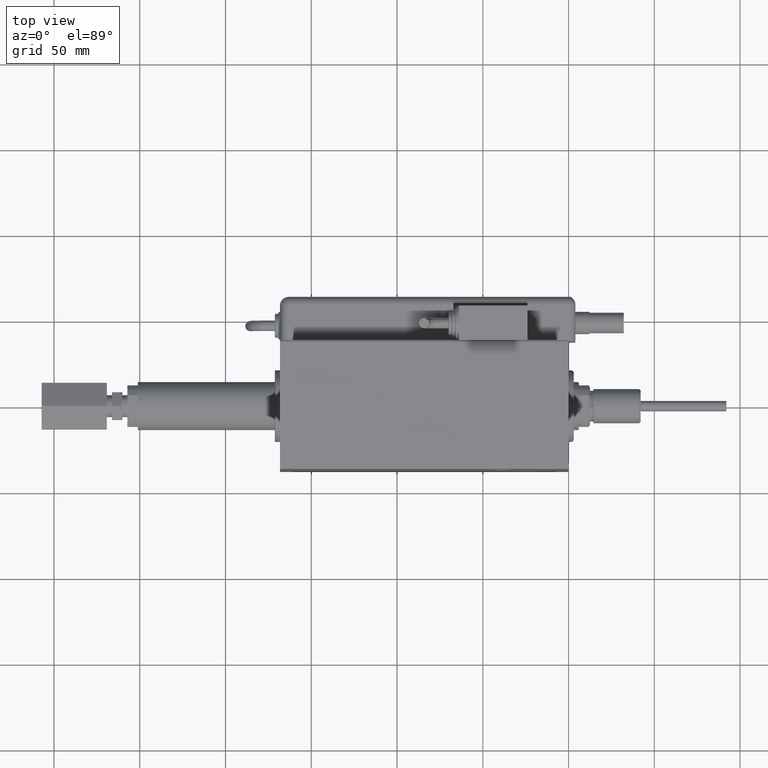
[diagram: clean part render]
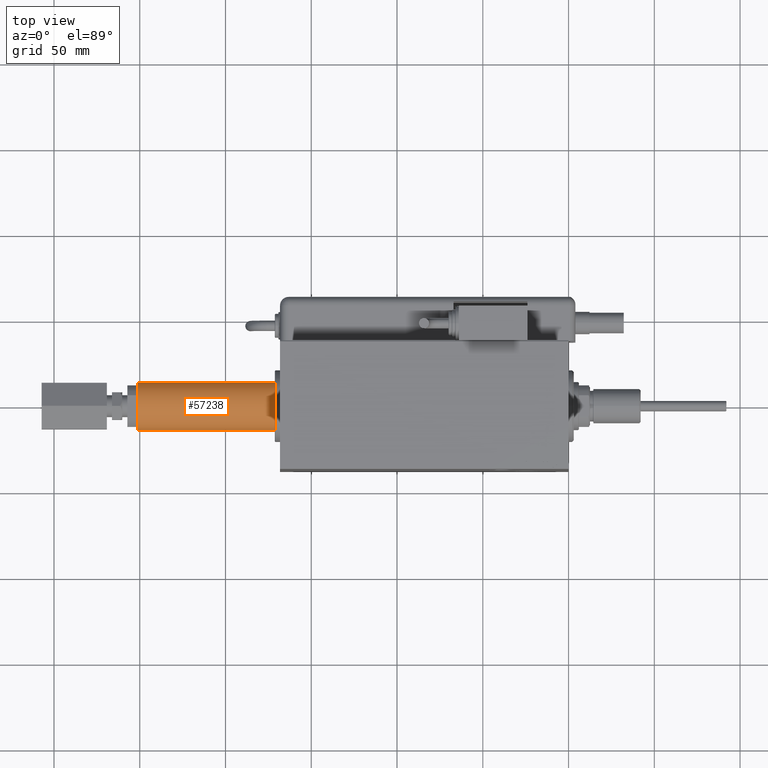
[diagram: same view with one face highlighted and labeled with its STEP entity id]
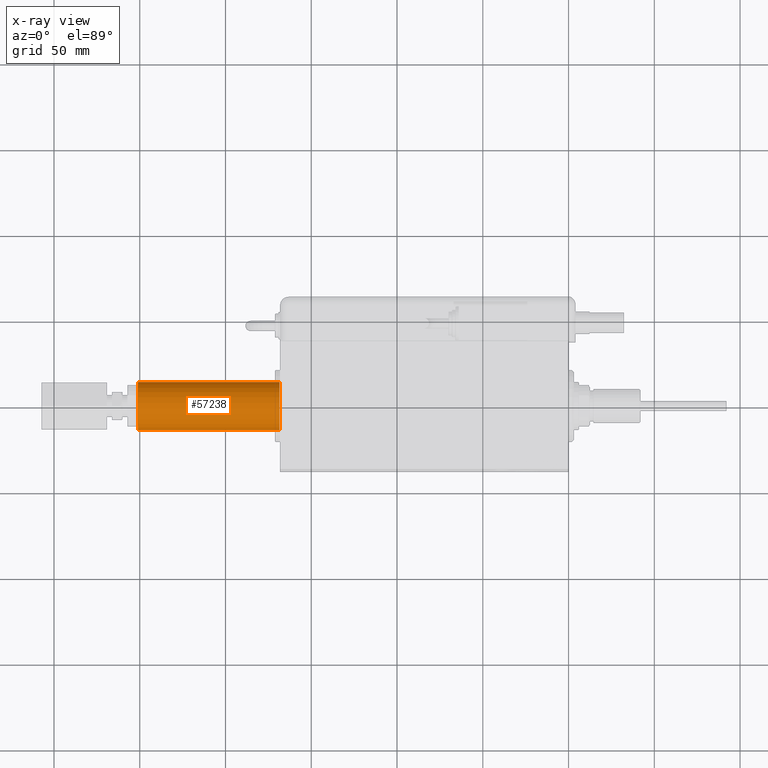
[diagram: x-ray of the same camera — body ghosted, the highlighted face saturated]
A machine part, top view. The second image highlights one B-rep face of the part: STEP entity #57238.
The next image is the same camera in x-ray: the body ghosted, the highlighted face saturated — about 0% of this face is hidden behind the body in this view.
In plain terms, the highlighted cylindrical surface (edge-blend (fillet) strip) has radius 14 mm, axis along (1, 0, 0).
Its self-contained STEP definition (entity closure, byte-faithful):
#336 = CARTESIAN_POINT ( 'NONE',  ( 0.3000000000000641043, 0.000000000000000000, 13.99999999999999822 ) ) ;
#2210 = CARTESIAN_POINT ( 'NONE',  ( 83.00000000000000000, 1.714505518806294441E-15, -13.99999999999999822 ) ) ;
#2288 = CARTESIAN_POINT ( 'NONE',  ( 83.00000000000000000, 0.000000000000000000, 13.99999999999999822 ) ) ;
#3099 = CARTESIAN_POINT ( 'NONE',  ( 83.00000000000000000, 0.000000000000000000, 13.99999999999999822 ) ) ;
#3376 = CARTESIAN_POINT ( 'NONE',  ( 83.00000000000000000, 0.000000000000000000, 0.000000000000000000 ) ) ;
#5801 = AXIS2_PLACEMENT_3D ( 'NONE', #15966, #35805, #54758 ) ;
#7716 = CYLINDRICAL_SURFACE ( 'NONE', #47191, 13.99999999999999822 ) ;
#13059 = AXIS2_PLACEMENT_3D ( 'NONE', #59824, #21938, #36834 ) ;
#14020 = EDGE_CURVE ( 'NONE', #27428, #55211, #45145, .T. ) ;
#14036 = VECTOR ( 'NONE', #50919, 1000.000000000000000 ) ;
#15155 = VECTOR ( 'NONE', #21543, 1000.000000000000000 ) ;
#15966 = CARTESIAN_POINT ( 'NONE',  ( 0.3000000000000641043, 0.000000000000000000, 0.000000000000000000 ) ) ;
#16205 = ORIENTED_EDGE ( 'NONE', *, *, #14020, .F. ) ;
#16429 = CARTESIAN_POINT ( 'NONE',  ( 0.3000000000000641043, 1.714505518806294441E-15, -13.99999999999999822 ) ) ;
#17946 = FACE_OUTER_BOUND ( 'NONE', #55269, .T. ) ;
#18998 = CIRCLE ( 'NONE', #13059, 13.99999999999999822 ) ;
#20727 = ORIENTED_EDGE ( 'NONE', *, *, #30322, .T. ) ;
#21543 = DIRECTION ( 'NONE',  ( -1.000000000000000000, -0.000000000000000000, -0.000000000000000000 ) ) ;
#21938 = DIRECTION ( 'NONE',  ( 1.000000000000000000, 0.000000000000000000, 0.000000000000000000 ) ) ;
#22295 = DIRECTION ( 'NONE',  ( -1.000000000000000000, -0.000000000000000000, -0.000000000000000000 ) ) ;
#26692 = LINE ( 'NONE', #3099, #14036 ) ;
#27023 = VERTEX_POINT ( 'NONE', #2288 ) ;
#27428 = VERTEX_POINT ( 'NONE', #2210 ) ;
#30322 = EDGE_CURVE ( 'NONE', #42924, #55211, #35527, .T. ) ;
#31869 = ORIENTED_EDGE ( 'NONE', *, *, #44070, .T. ) ;
#35527 = CIRCLE ( 'NONE', #5801, 13.99999999999999822 ) ;
#35805 = DIRECTION ( 'NONE',  ( 1.000000000000000000, -0.000000000000000000, -0.000000000000000000 ) ) ;
#36834 = DIRECTION ( 'NONE',  ( 0.000000000000000000, 0.000000000000000000, -1.000000000000000000 ) ) ;
#40670 = EDGE_CURVE ( 'NONE', #27023, #27428, #18998, .T. ) ;
#42924 = VERTEX_POINT ( 'NONE', #336 ) ;
#44070 = EDGE_CURVE ( 'NONE', #27023, #42924, #26692, .T. ) ;
#45145 = LINE ( 'NONE', #58813, #15155 ) ;
#47191 = AXIS2_PLACEMENT_3D ( 'NONE', #3376, #22295, #60179 ) ;
#50209 = ORIENTED_EDGE ( 'NONE', *, *, #40670, .F. ) ;
#50919 = DIRECTION ( 'NONE',  ( -1.000000000000000000, -0.000000000000000000, -0.000000000000000000 ) ) ;
#54758 = DIRECTION ( 'NONE',  ( 0.000000000000000000, 0.000000000000000000, -1.000000000000000000 ) ) ;
#55211 = VERTEX_POINT ( 'NONE', #16429 ) ;
#55269 = EDGE_LOOP ( 'NONE', ( #16205, #50209, #31869, #20727 ) ) ;
#57238 = ADVANCED_FACE ( 'NONE', ( #17946 ), #7716, .T. ) ;
#58813 = CARTESIAN_POINT ( 'NONE',  ( 83.00000000000000000, 1.714505518806294441E-15, -13.99999999999999822 ) ) ;
#59824 = CARTESIAN_POINT ( 'NONE',  ( 83.00000000000000000, 0.000000000000000000, 0.000000000000000000 ) ) ;
#60179 = DIRECTION ( 'NONE',  ( 0.000000000000000000, 0.000000000000000000, 1.000000000000000000 ) ) ;